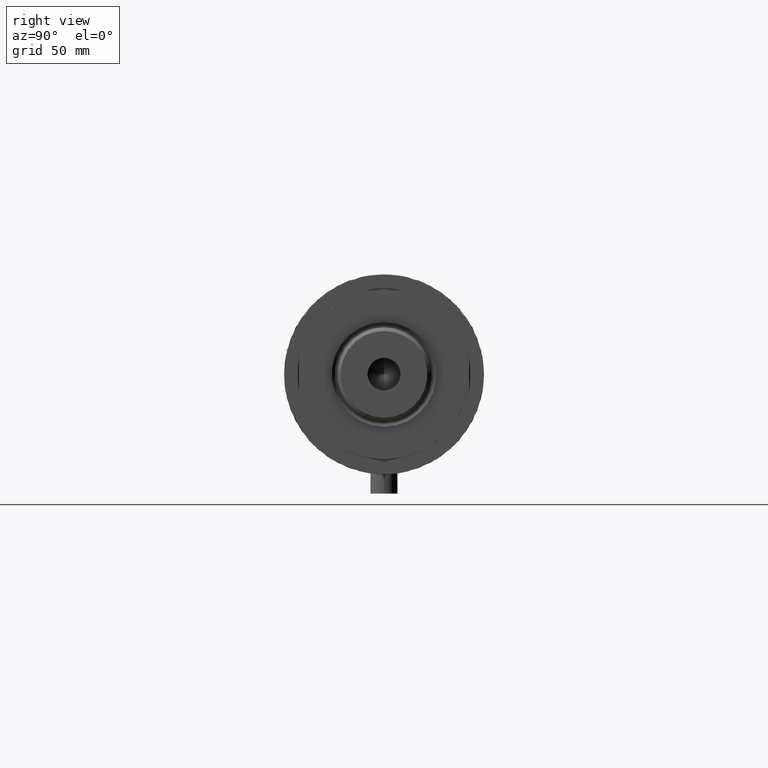
[diagram: clean part render]
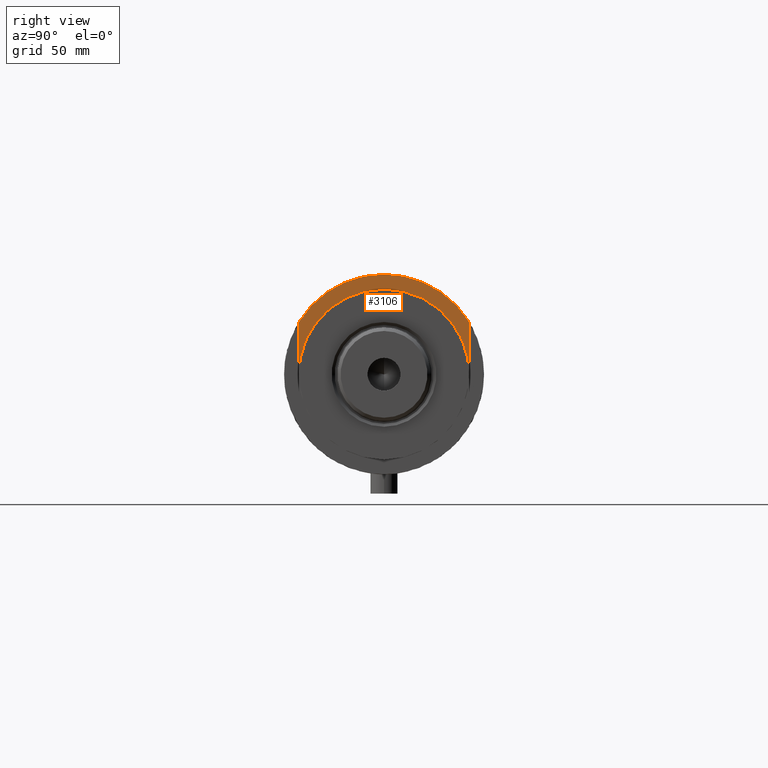
[diagram: same view with one face highlighted and labeled with its STEP entity id]
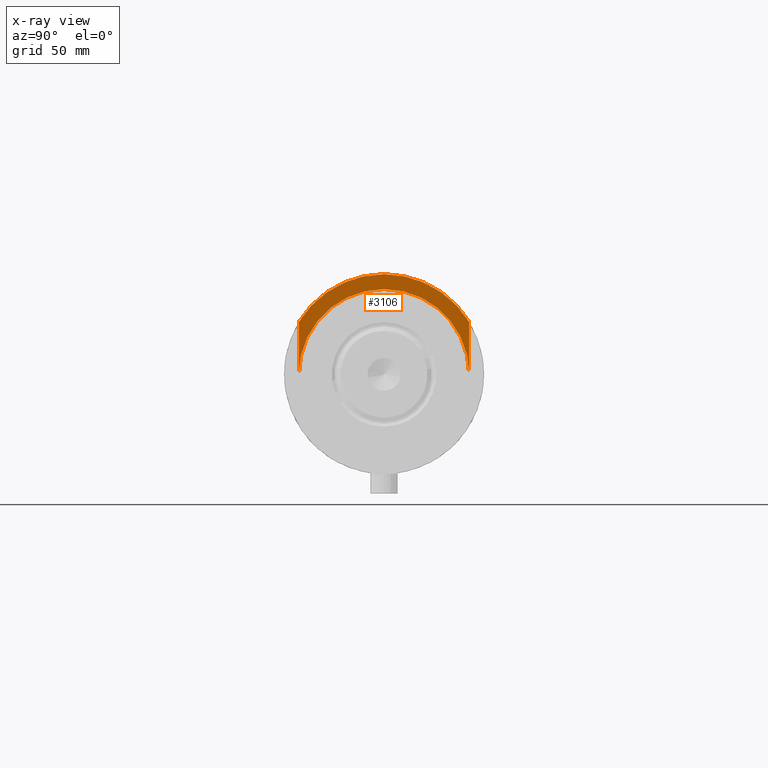
[diagram: x-ray of the same camera — body ghosted, the highlighted face saturated]
A machine part, right view. The second image highlights one B-rep face of the part: STEP entity #3106.
The next image is the same camera in x-ray: the body ghosted, the highlighted face saturated — about 0% of this face is hidden behind the body in this view.
In plain terms, the highlighted planar face has unit normal (1, 0, -0).
Its self-contained STEP definition (entity closure, byte-faithful):
#10 = DIRECTION ( 'NONE',  ( -0.000000000000000000, -0.000000000000000000, -1.000000000000000000 ) ) ;
#102 = AXIS2_PLACEMENT_3D ( 'NONE', #319, #3512, #1959 ) ;
#319 = CARTESIAN_POINT ( 'NONE',  ( 0.000000000000000000, 0.000000000000000000, 27.89999999999999858 ) ) ;
#606 = VERTEX_POINT ( 'NONE', #1785 ) ;
#760 = ORIENTED_EDGE ( 'NONE', *, *, #1089, .T. ) ;
#773 = EDGE_LOOP ( 'NONE', ( #3557, #2421, #760, #2414, #2633, #1962 ) ) ;
#907 = DIRECTION ( 'NONE',  ( -0.000000000000000000, -0.000000000000000000, -1.000000000000000000 ) ) ;
#1064 = FACE_OUTER_BOUND ( 'NONE', #773, .T. ) ;
#1089 = EDGE_CURVE ( 'NONE', #4754, #4728, #2906, .T. ) ;
#1119 = CIRCLE ( 'NONE', #3537, 44.00000000000000000 ) ;
#1141 = EDGE_CURVE ( 'NONE', #3116, #4782, #3401, .T. ) ;
#1147 = EDGE_CURVE ( 'NONE', #606, #4782, #3389, .T. ) ;
#1160 = VERTEX_POINT ( 'NONE', #1992 ) ;
#1436 = VECTOR ( 'NONE', #2232, 1000.000000000000000 ) ;
#1547 = EDGE_CURVE ( 'NONE', #1160, #4728, #3349, .T. ) ;
#1589 = CARTESIAN_POINT ( 'NONE',  ( 0.000000000000000000, 0.000000000000000000, 27.89999999999999858 ) ) ;
#1785 = CARTESIAN_POINT ( 'NONE',  ( -44.00000000000000000, 0.000000000000000000, 27.89999999999999858 ) ) ;
#1959 = DIRECTION ( 'NONE',  ( 1.000000000000000000, 0.000000000000000000, -0.000000000000000000 ) ) ;
#1962 = ORIENTED_EDGE ( 'NONE', *, *, #1147, .T. ) ;
#1992 = CARTESIAN_POINT ( 'NONE',  ( -23.01629857296780557, 37.50000000000000000, 27.89999999999999858 ) ) ;
#2139 = AXIS2_PLACEMENT_3D ( 'NONE', #2155, #10, #4012 ) ;
#2155 = CARTESIAN_POINT ( 'NONE',  ( 0.000000000000000000, 0.000000000000000000, 27.89999999999999858 ) ) ;
#2188 = PLANE ( 'NONE',  #102 ) ;
#2232 = DIRECTION ( 'NONE',  ( 1.000000000000000000, 0.000000000000000000, 0.000000000000000000 ) ) ;
#2272 = EDGE_CURVE ( 'NONE', #3116, #4754, #4098, .T. ) ;
#2313 = DIRECTION ( 'NONE',  ( 0.000000000000000000, 0.000000000000000000, 1.000000000000000000 ) ) ;
#2403 = DIRECTION ( 'NONE',  ( 1.000000000000000000, 0.000000000000000000, 0.000000000000000000 ) ) ;
#2414 = ORIENTED_EDGE ( 'NONE', *, *, #1547, .F. ) ;
#2421 = ORIENTED_EDGE ( 'NONE', *, *, #2272, .T. ) ;
#2485 = CARTESIAN_POINT ( 'NONE',  ( 0.000000000000000000, 0.000000000000000000, 27.89999999999999858 ) ) ;
#2597 = AXIS2_PLACEMENT_3D ( 'NONE', #4277, #907, #2403 ) ;
#2605 = AXIS2_PLACEMENT_3D ( 'NONE', #1589, #2313, #3477 ) ;
#2633 = ORIENTED_EDGE ( 'NONE', *, *, #2898, .T. ) ;
#2635 = DIRECTION ( 'NONE',  ( -1.000000000000000000, -0.000000000000000000, -0.000000000000000000 ) ) ;
#2766 = CARTESIAN_POINT ( 'NONE',  ( 0.000000000000000000, -37.50000000000000000, 27.89999999999999858 ) ) ;
#2898 = EDGE_CURVE ( 'NONE', #1160, #606, #1119, .T. ) ;
#2906 = CIRCLE ( 'NONE', #2139, 37.50000000000000000 ) ;
#3106 = ADVANCED_FACE ( 'NONE', ( #1064 ), #2188, .T. ) ;
#3116 = VERTEX_POINT ( 'NONE', #2766 ) ;
#3304 = CARTESIAN_POINT ( 'NONE',  ( 0.000000000000000000, 37.50000000000000000, 27.89999999999999858 ) ) ;
#3349 = LINE ( 'NONE', #4073, #1436 ) ;
#3389 = CIRCLE ( 'NONE', #2605, 44.00000000000000000 ) ;
#3401 = LINE ( 'NONE', #3447, #4712 ) ;
#3447 = CARTESIAN_POINT ( 'NONE',  ( -23.01629857296780557, -37.50000000000000000, 27.89999999999999858 ) ) ;
#3477 = DIRECTION ( 'NONE',  ( 1.000000000000000000, 0.000000000000000000, 0.000000000000000000 ) ) ;
#3512 = DIRECTION ( 'NONE',  ( 0.000000000000000000, 0.000000000000000000, 1.000000000000000000 ) ) ;
#3537 = AXIS2_PLACEMENT_3D ( 'NONE', #2485, #3592, #3572 ) ;
#3557 = ORIENTED_EDGE ( 'NONE', *, *, #1141, .F. ) ;
#3572 = DIRECTION ( 'NONE',  ( 1.000000000000000000, 0.000000000000000000, 0.000000000000000000 ) ) ;
#3592 = DIRECTION ( 'NONE',  ( 0.000000000000000000, 0.000000000000000000, 1.000000000000000000 ) ) ;
#4012 = DIRECTION ( 'NONE',  ( 1.000000000000000000, 0.000000000000000000, 0.000000000000000000 ) ) ;
#4073 = CARTESIAN_POINT ( 'NONE',  ( -23.01629857296780557, 37.50000000000000000, 27.89999999999999858 ) ) ;
#4097 = CARTESIAN_POINT ( 'NONE',  ( -37.50000000000000000, 4.592425496802574367E-15, 27.89999999999999858 ) ) ;
#4098 = CIRCLE ( 'NONE', #2597, 37.50000000000000000 ) ;
#4277 = CARTESIAN_POINT ( 'NONE',  ( 0.000000000000000000, 0.000000000000000000, 27.89999999999999858 ) ) ;
#4600 = CARTESIAN_POINT ( 'NONE',  ( -23.01629857296780557, -37.50000000000000000, 27.89999999999999858 ) ) ;
#4712 = VECTOR ( 'NONE', #2635, 1000.000000000000000 ) ;
#4728 = VERTEX_POINT ( 'NONE', #3304 ) ;
#4754 = VERTEX_POINT ( 'NONE', #4097 ) ;
#4782 = VERTEX_POINT ( 'NONE', #4600 ) ;